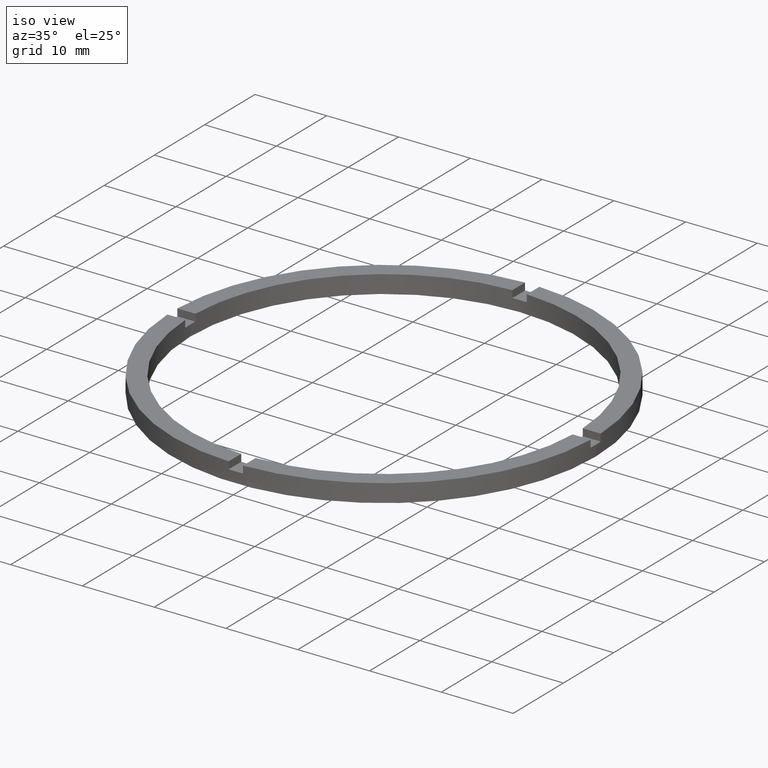
[diagram: clean part render]
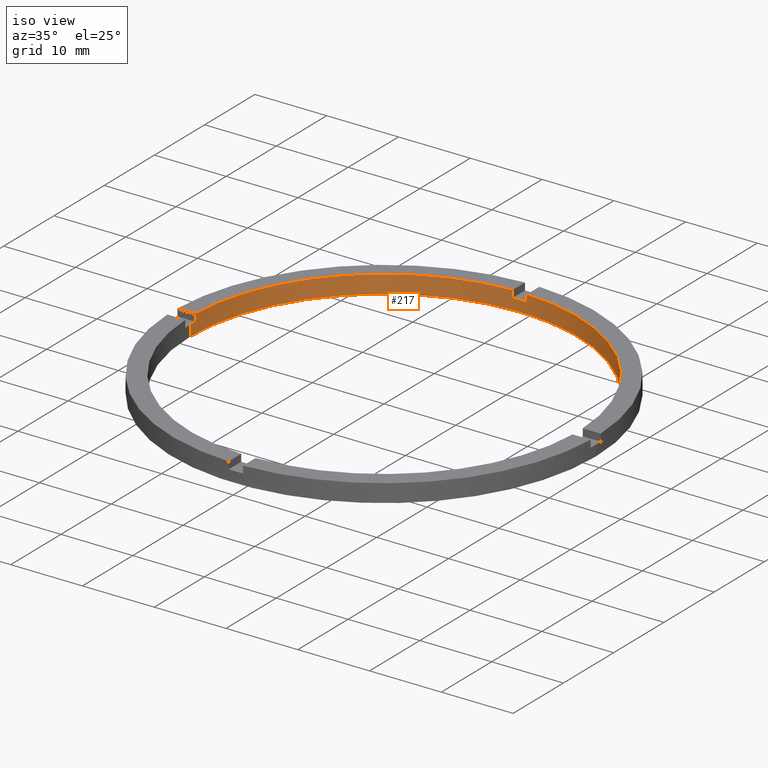
[diagram: same view with one face highlighted and labeled with its STEP entity id]
A machine part, iso view. The second image highlights one B-rep face of the part: STEP entity #217.
In plain terms, the highlighted cylindrical surface (partial cylindrical patch) has radius 27 mm, axis along (-0, -0, -1).
Its self-contained STEP definition (entity closure, byte-faithful):
#5 = CIRCLE ( 'NONE', #579, 27.00000000000000000 ) ;
#11 = CIRCLE ( 'NONE', #441, 27.00000000000000000 ) ;
#32 = DIRECTION ( 'NONE',  ( 0.000000000000000000, 0.000000000000000000, 1.000000000000000000 ) ) ;
#37 = LINE ( 'NONE', #414, #311 ) ;
#49 = LINE ( 'NONE', #76, #323 ) ;
#53 = EDGE_CURVE ( 'NONE', #413, #780, #571, .T. ) ;
#54 = DIRECTION ( 'NONE',  ( -0.000000000000000000, -0.000000000000000000, -1.000000000000000000 ) ) ;
#70 = CARTESIAN_POINT ( 'NONE',  ( 27.00000000000000000, 3.306546357697853733E-15, 0.000000000000000000 ) ) ;
#76 = CARTESIAN_POINT ( 'NONE',  ( -27.00000000000000000, 0.000000000000000000, 2.500000000000000000 ) ) ;
#78 = DIRECTION ( 'NONE',  ( 1.000000000000000000, 0.000000000000000000, 0.000000000000000000 ) ) ;
#84 = DIRECTION ( 'NONE',  ( 0.000000000000000000, -0.000000000000000000, 1.000000000000000000 ) ) ;
#117 = DIRECTION ( 'NONE',  ( 0.000000000000000000, 0.000000000000000000, 1.000000000000000000 ) ) ;
#121 = EDGE_CURVE ( 'NONE', #409, #215, #293, .T. ) ;
#125 = EDGE_CURVE ( 'NONE', #248, #693, #37, .T. ) ;
#131 = VERTEX_POINT ( 'NONE', #607 ) ;
#133 = VECTOR ( 'NONE', #340, 1000.000000000000000 ) ;
#140 = DIRECTION ( 'NONE',  ( 1.000000000000000000, 0.000000000000000000, 0.000000000000000000 ) ) ;
#147 = DIRECTION ( 'NONE',  ( 0.000000000000000000, 0.000000000000000000, 1.000000000000000000 ) ) ;
#173 = EDGE_CURVE ( 'NONE', #780, #215, #49, .T. ) ;
#176 = ORIENTED_EDGE ( 'NONE', *, *, #635, .T. ) ;
#187 = ORIENTED_EDGE ( 'NONE', *, *, #605, .T. ) ;
#192 = DIRECTION ( 'NONE',  ( -1.000000000000000000, 0.000000000000000000, 0.000000000000000000 ) ) ;
#196 = VERTEX_POINT ( 'NONE', #337 ) ;
#203 = ORIENTED_EDGE ( 'NONE', *, *, #778, .T. ) ;
#215 = VERTEX_POINT ( 'NONE', #515 ) ;
#217 = ADVANCED_FACE ( 'NONE', ( #572 ), #325, .F. ) ;
#218 = CARTESIAN_POINT ( 'NONE',  ( 0.000000000000000000, 0.000000000000000000, 2.500000000000000000 ) ) ;
#221 = CARTESIAN_POINT ( 'NONE',  ( 27.00000000000000000, 3.306546357697853733E-15, 1.500000000000000000 ) ) ;
#235 = CARTESIAN_POINT ( 'NONE',  ( -27.00000000000000000, 0.000000000000000000, 1.500000000000000000 ) ) ;
#240 = ORIENTED_EDGE ( 'NONE', *, *, #319, .F. ) ;
#248 = VERTEX_POINT ( 'NONE', #668 ) ;
#251 = VERTEX_POINT ( 'NONE', #748 ) ;
#259 = EDGE_CURVE ( 'NONE', #691, #131, #573, .T. ) ;
#263 = AXIS2_PLACEMENT_3D ( 'NONE', #322, #371, #333 ) ;
#266 = LINE ( 'NONE', #589, #528 ) ;
#285 = DIRECTION ( 'NONE',  ( 1.000000000000000000, 0.000000000000000000, 0.000000000000000000 ) ) ;
#286 = DIRECTION ( 'NONE',  ( -0.000000000000000000, -0.000000000000000000, -1.000000000000000000 ) ) ;
#293 = CIRCLE ( 'NONE', #263, 27.00000000000000000 ) ;
#299 = CARTESIAN_POINT ( 'NONE',  ( 26.98147512646408686, 0.9999999999998409050, 2.500000000000000000 ) ) ;
#301 = DIRECTION ( 'NONE',  ( 0.000000000000000000, 0.000000000000000000, 1.000000000000000000 ) ) ;
#311 = VECTOR ( 'NONE', #495, 1000.000000000000000 ) ;
#312 = CARTESIAN_POINT ( 'NONE',  ( 0.9999999999999756861, 26.98147512646408330, 2.500000000000000000 ) ) ;
#319 = EDGE_CURVE ( 'NONE', #413, #196, #400, .T. ) ;
#322 = CARTESIAN_POINT ( 'NONE',  ( 0.000000000000000000, 0.000000000000000000, 0.000000000000000000 ) ) ;
#323 = VECTOR ( 'NONE', #54, 1000.000000000000000 ) ;
#325 = CYLINDRICAL_SURFACE ( 'NONE', #332, 27.00000000000000000 ) ;
#332 = AXIS2_PLACEMENT_3D ( 'NONE', #675, #578, #192 ) ;
#333 = DIRECTION ( 'NONE',  ( 1.000000000000000000, 0.000000000000000000, 0.000000000000000000 ) ) ;
#337 = CARTESIAN_POINT ( 'NONE',  ( -26.98147512646408330, 0.9999999999999754641, 2.500000000000000000 ) ) ;
#340 = DIRECTION ( 'NONE',  ( 0.000000000000000000, 0.000000000000000000, 1.000000000000000000 ) ) ;
#344 = DIRECTION ( 'NONE',  ( 0.000000000000000000, 0.000000000000000000, 1.000000000000000000 ) ) ;
#347 = DIRECTION ( 'NONE',  ( 1.000000000000000000, 0.000000000000000000, 0.000000000000000000 ) ) ;
#365 = CIRCLE ( 'NONE', #382, 27.00000000000000000 ) ;
#367 = EDGE_CURVE ( 'NONE', #691, #746, #365, .T. ) ;
#371 = DIRECTION ( 'NONE',  ( 0.000000000000000000, 0.000000000000000000, 1.000000000000000000 ) ) ;
#382 = AXIS2_PLACEMENT_3D ( 'NONE', #674, #117, #285 ) ;
#393 = CARTESIAN_POINT ( 'NONE',  ( 26.98147512646408686, 0.9999999999998409050, 2.500000000000000000 ) ) ;
#400 = LINE ( 'NONE', #747, #133 ) ;
#409 = VERTEX_POINT ( 'NONE', #70 ) ;
#413 = VERTEX_POINT ( 'NONE', #559 ) ;
#414 = CARTESIAN_POINT ( 'NONE',  ( -1.000000000000024203, 26.98147512646407975, 2.500000000000000000 ) ) ;
#418 = AXIS2_PLACEMENT_3D ( 'NONE', #742, #32, #78 ) ;
#441 = AXIS2_PLACEMENT_3D ( 'NONE', #620, #147, #140 ) ;
#446 = ORIENTED_EDGE ( 'NONE', *, *, #121, .F. ) ;
#451 = DIRECTION ( 'NONE',  ( -0.000000000000000000, -0.000000000000000000, -1.000000000000000000 ) ) ;
#454 = EDGE_LOOP ( 'NONE', ( #481, #203, #709, #479, #710, #176, #761, #187, #240, #476, #707, #446 ) ) ;
#476 = ORIENTED_EDGE ( 'NONE', *, *, #53, .T. ) ;
#479 = ORIENTED_EDGE ( 'NONE', *, *, #367, .T. ) ;
#481 = ORIENTED_EDGE ( 'NONE', *, *, #584, .F. ) ;
#485 = AXIS2_PLACEMENT_3D ( 'NONE', #545, #84, #530 ) ;
#495 = DIRECTION ( 'NONE',  ( -0.000000000000000000, -0.000000000000000000, -1.000000000000000000 ) ) ;
#499 = LINE ( 'NONE', #636, #766 ) ;
#515 = CARTESIAN_POINT ( 'NONE',  ( -27.00000000000000000, 0.000000000000000000, 0.000000000000000000 ) ) ;
#528 = VECTOR ( 'NONE', #344, 1000.000000000000000 ) ;
#529 = CIRCLE ( 'NONE', #485, 27.00000000000000000 ) ;
#530 = DIRECTION ( 'NONE',  ( 1.000000000000000000, 0.000000000000000000, 0.000000000000000000 ) ) ;
#545 = CARTESIAN_POINT ( 'NONE',  ( 0.000000000000000000, 0.000000000000000000, 1.500000000000000000 ) ) ;
#559 = CARTESIAN_POINT ( 'NONE',  ( -26.98147512646408330, 0.9999999999999754641, 1.500000000000000000 ) ) ;
#571 = CIRCLE ( 'NONE', #418, 27.00000000000000000 ) ;
#572 = FACE_OUTER_BOUND ( 'NONE', #454, .T. ) ;
#573 = LINE ( 'NONE', #299, #575 ) ;
#575 = VECTOR ( 'NONE', #286, 1000.000000000000000 ) ;
#578 = DIRECTION ( 'NONE',  ( -0.000000000000000000, -0.000000000000000000, -1.000000000000000000 ) ) ;
#579 = AXIS2_PLACEMENT_3D ( 'NONE', #218, #301, #347 ) ;
#584 = EDGE_CURVE ( 'NONE', #728, #409, #499, .T. ) ;
#589 = CARTESIAN_POINT ( 'NONE',  ( 0.9999999999999756861, 26.98147512646408330, 2.500000000000000000 ) ) ;
#605 = EDGE_CURVE ( 'NONE', #248, #196, #5, .T. ) ;
#607 = CARTESIAN_POINT ( 'NONE',  ( 26.98147512646408686, 0.9999999999998409050, 1.500000000000000000 ) ) ;
#620 = CARTESIAN_POINT ( 'NONE',  ( 0.000000000000000000, 0.000000000000000000, 1.500000000000000000 ) ) ;
#626 = CARTESIAN_POINT ( 'NONE',  ( -1.000000000000024203, 26.98147512646407975, 1.500000000000000000 ) ) ;
#635 = EDGE_CURVE ( 'NONE', #251, #693, #529, .T. ) ;
#636 = CARTESIAN_POINT ( 'NONE',  ( 27.00000000000000000, 3.306546357697853733E-15, 2.500000000000000000 ) ) ;
#668 = CARTESIAN_POINT ( 'NONE',  ( -1.000000000000024203, 26.98147512646407975, 2.500000000000000000 ) ) ;
#674 = CARTESIAN_POINT ( 'NONE',  ( 0.000000000000000000, 0.000000000000000000, 2.500000000000000000 ) ) ;
#675 = CARTESIAN_POINT ( 'NONE',  ( 0.000000000000000000, 0.000000000000000000, 2.500000000000000000 ) ) ;
#691 = VERTEX_POINT ( 'NONE', #393 ) ;
#693 = VERTEX_POINT ( 'NONE', #626 ) ;
#707 = ORIENTED_EDGE ( 'NONE', *, *, #173, .T. ) ;
#709 = ORIENTED_EDGE ( 'NONE', *, *, #259, .F. ) ;
#710 = ORIENTED_EDGE ( 'NONE', *, *, #749, .F. ) ;
#728 = VERTEX_POINT ( 'NONE', #221 ) ;
#742 = CARTESIAN_POINT ( 'NONE',  ( 0.000000000000000000, 0.000000000000000000, 1.500000000000000000 ) ) ;
#746 = VERTEX_POINT ( 'NONE', #312 ) ;
#747 = CARTESIAN_POINT ( 'NONE',  ( -26.98147512646408330, 0.9999999999999754641, 2.500000000000000000 ) ) ;
#748 = CARTESIAN_POINT ( 'NONE',  ( 0.9999999999999756861, 26.98147512646408330, 1.500000000000000000 ) ) ;
#749 = EDGE_CURVE ( 'NONE', #251, #746, #266, .T. ) ;
#761 = ORIENTED_EDGE ( 'NONE', *, *, #125, .F. ) ;
#766 = VECTOR ( 'NONE', #451, 1000.000000000000000 ) ;
#778 = EDGE_CURVE ( 'NONE', #728, #131, #11, .T. ) ;
#780 = VERTEX_POINT ( 'NONE', #235 ) ;